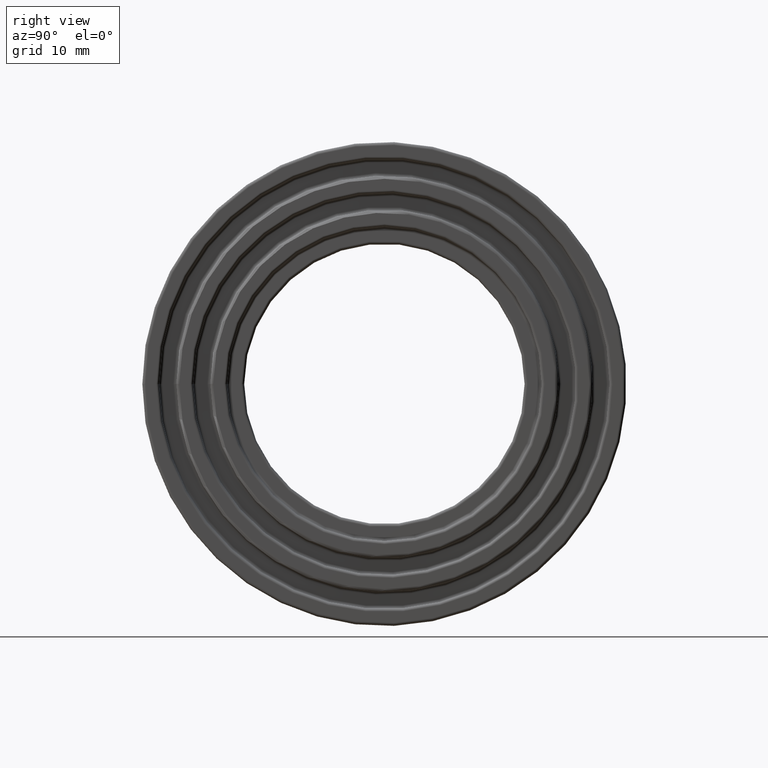
[diagram: clean part render]
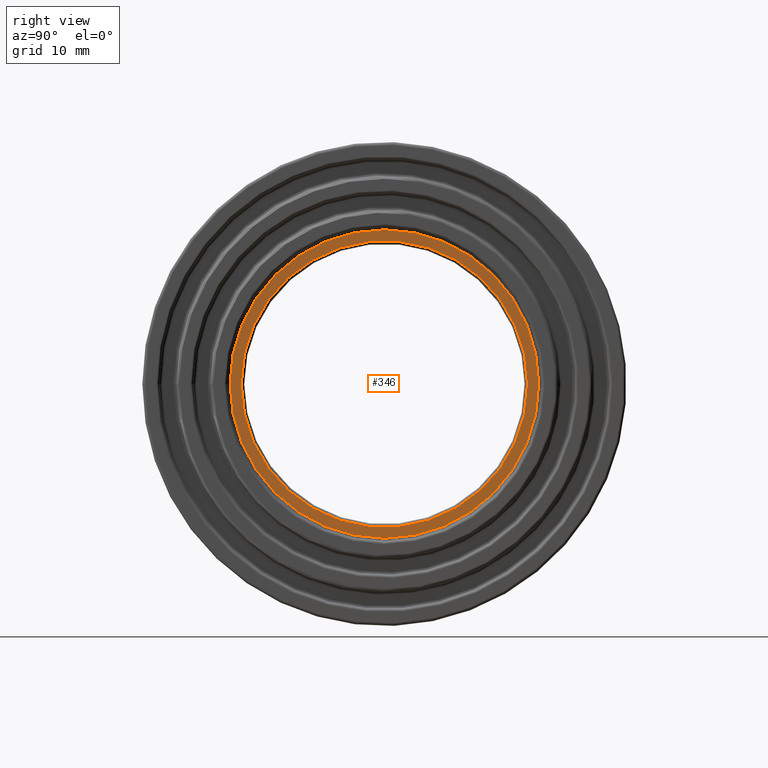
[diagram: same view with one face highlighted and labeled with its STEP entity id]
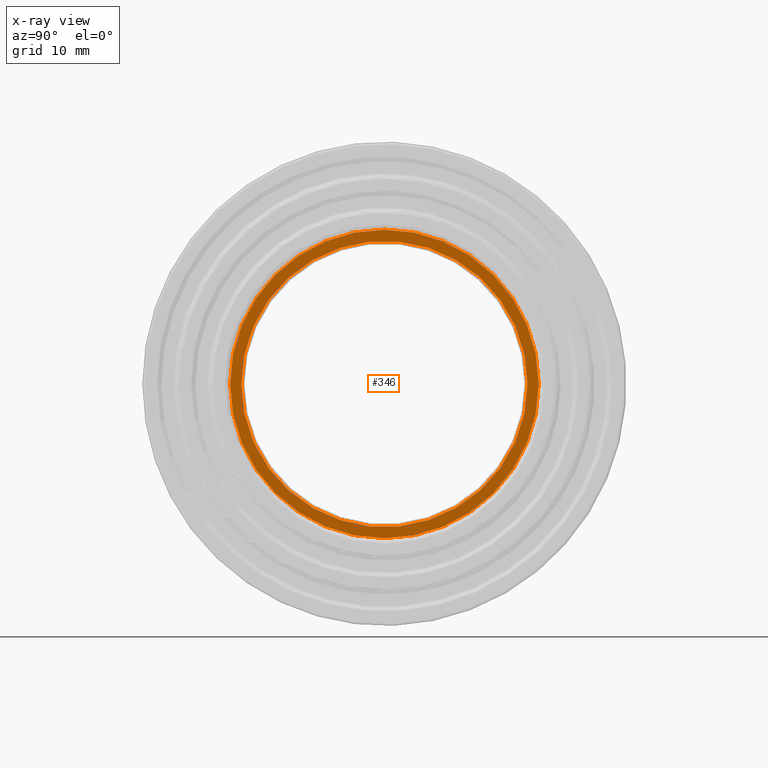
[diagram: x-ray of the same camera — body ghosted, the highlighted face saturated]
A machine part, right view. The second image highlights one B-rep face of the part: STEP entity #346.
The next image is the same camera in x-ray: the body ghosted, the highlighted face saturated — about 0% of this face is hidden behind the body in this view.
In plain terms, the highlighted planar face has unit normal (1, 0, 0).
Its self-contained STEP definition (entity closure, byte-faithful):
#24=PLANE('',#383);
#34=FACE_BOUND('',#102,.T.);
#67=FACE_OUTER_BOUND('',#101,.T.);
#101=EDGE_LOOP('',(#266));
#102=EDGE_LOOP('',(#267));
#166=CIRCLE('',#382,12.125);
#167=CIRCLE('',#384,13.0625);
#199=VERTEX_POINT('',#584);
#200=VERTEX_POINT('',#587);
#232=EDGE_CURVE('',#199,#199,#166,.T.);
#233=EDGE_CURVE('',#200,#200,#167,.T.);
#266=ORIENTED_EDGE('',*,*,#233,.F.);
#267=ORIENTED_EDGE('',*,*,#232,.F.);
#346=ADVANCED_FACE('',(#67,#34),#24,.T.);
#382=AXIS2_PLACEMENT_3D('',#585,#452,#453);
#383=AXIS2_PLACEMENT_3D('',#586,#454,#455);
#384=AXIS2_PLACEMENT_3D('',#588,#456,#457);
#452=DIRECTION('center_axis',(1.,0.,0.));
#453=DIRECTION('ref_axis',(0.,1.,6.12323399573677E-17));
#454=DIRECTION('center_axis',(1.,0.,0.));
#455=DIRECTION('ref_axis',(0.,0.,-1.));
#456=DIRECTION('center_axis',(-1.,0.,0.));
#457=DIRECTION('ref_axis',(0.,1.,6.12323399573676E-17));
#584=CARTESIAN_POINT('',(20.95,-12.125,-2.22732636594925E-15));
#585=CARTESIAN_POINT('Origin',(20.95,0.,0.));
#586=CARTESIAN_POINT('Origin',(20.95,-13.3125,0.));
#587=CARTESIAN_POINT('',(20.95,-13.0625,7.99847440693115E-16));
#588=CARTESIAN_POINT('Origin',(20.95,0.,0.));